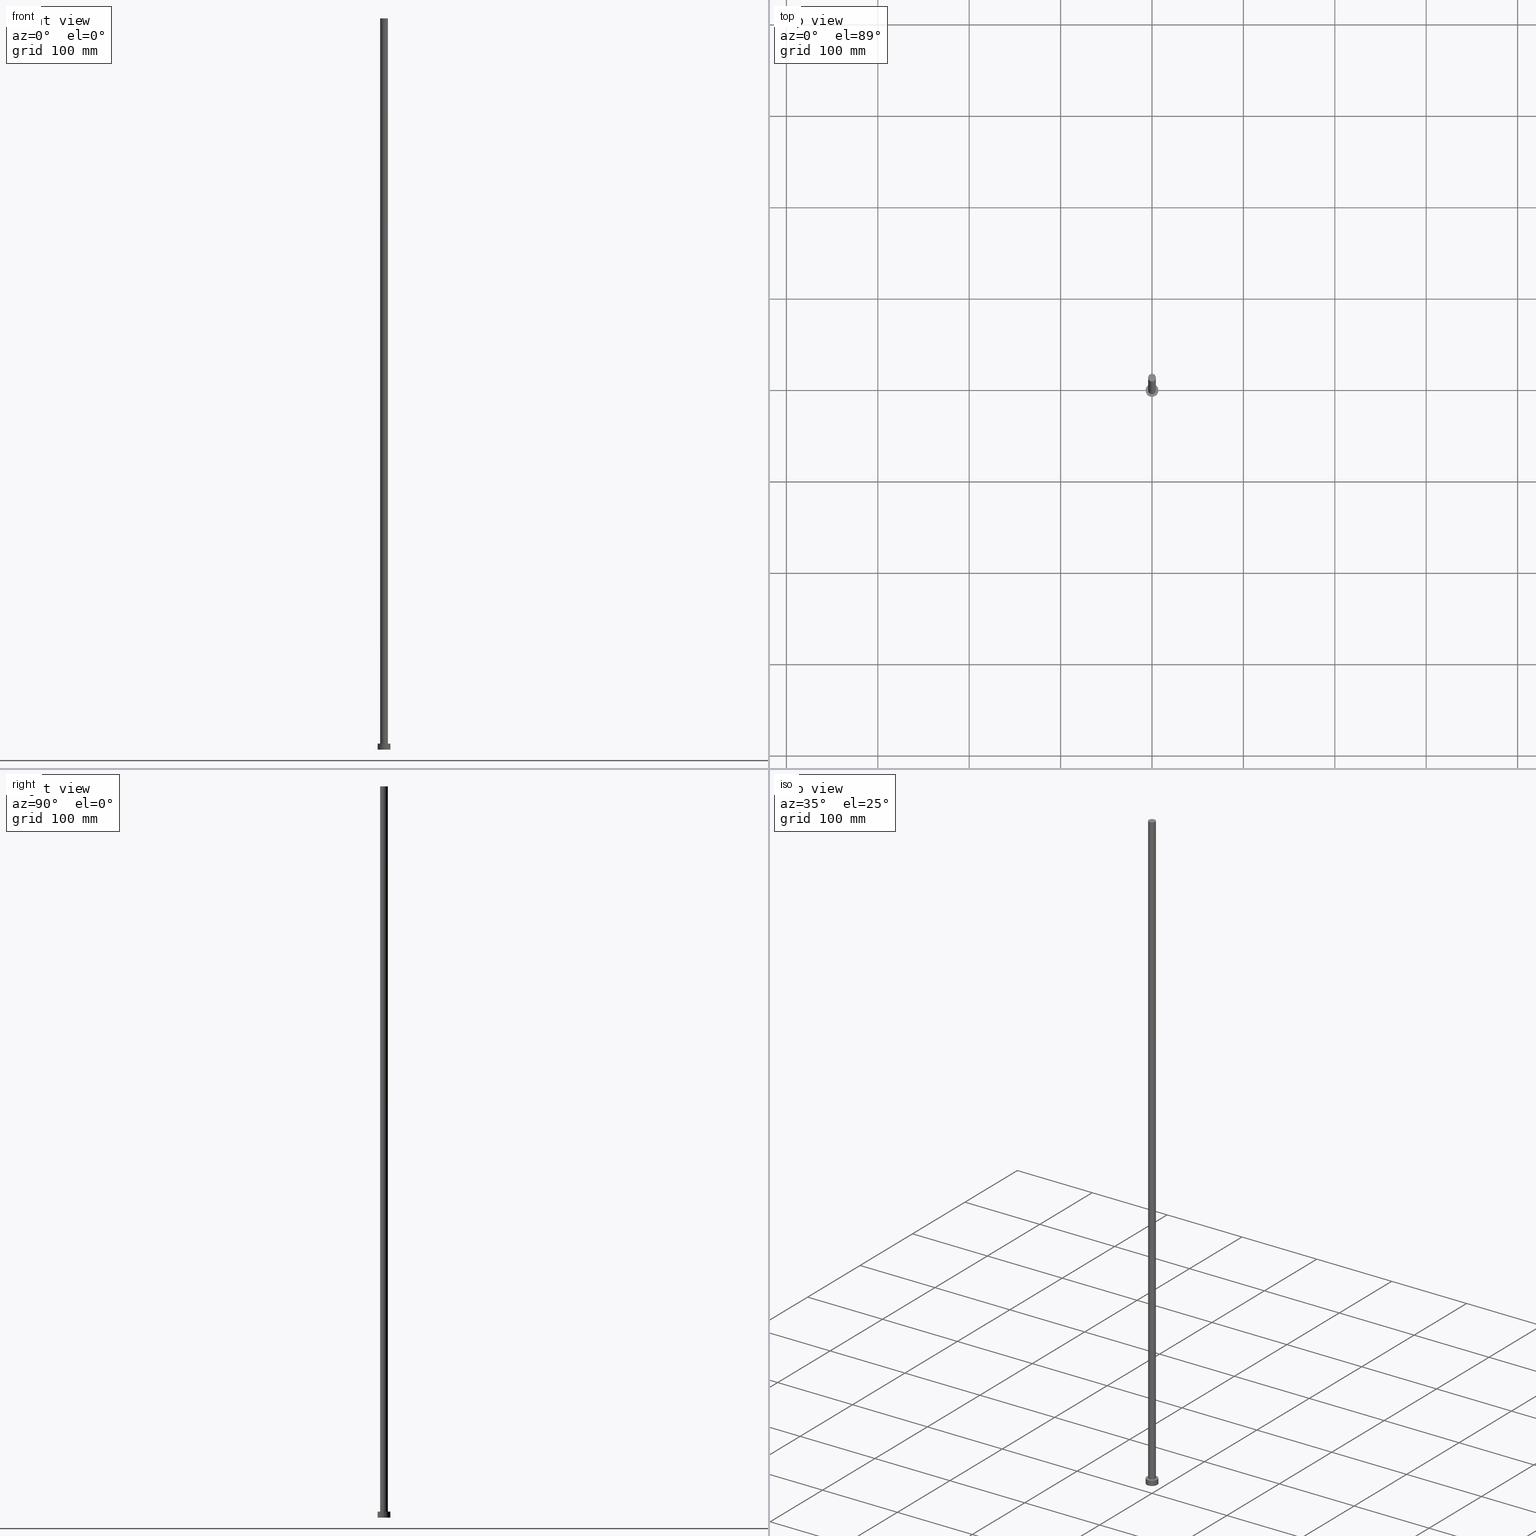
[diagram: canonical four-view strip — front | top / right | iso, engineering-drawing reading convention]
A machine part, canonical four-view strip (front | top / right | iso — engineering-drawing reading convention). The complete STEP part file that produces these views, byte-faithful:
ISO-10303-21;
HEADER;
FILE_DESCRIPTION (( 'STEP AP203' ),
    '1' );
FILE_NAME ('458e.STEP',
    '2023-02-13T13:47:08',
    ( '' ),
    ( '' ),
    'SwSTEP 2.0',
    'SolidWorks 2019',
    '' );
FILE_SCHEMA (( 'CONFIG_CONTROL_DESIGN' ));
ENDSEC;

DATA;
#1 = SECURITY_CLASSIFICATION_LEVEL ( 'unclassified' ) ;
#2 = CIRCLE ( 'NONE', #39, 4.250000000000000000 ) ;
#3 = CIRCLE ( 'NONE', #241, 7.000000000000000000 ) ;
#4 = ORIENTED_EDGE ( 'NONE', *, *, #214, .F. ) ;
#5 = ORIENTED_EDGE ( 'NONE', *, *, #170, .F. ) ;
#6 = EDGE_CURVE ( 'NONE', #141, #90, #162, .T. ) ;
#7 = APPROVAL_PERSON_ORGANIZATION ( #98, #100, #213 ) ;
#8 = ORIENTED_EDGE ( 'NONE', *, *, #190, .F. ) ;
#9 = DIRECTION ( 'NONE',  ( -0.000000000000000000, -0.000000000000000000, -1.000000000000000000 ) ) ;
#10 = CLOSED_SHELL ( 'NONE', ( #27, #242, #43, #61, #199, #122, #229 ) ) ;
#11 = FACE_OUTER_BOUND ( 'NONE', #169, .T. ) ;
#12 = CC_DESIGN_APPROVAL ( #102, ( #66 ) ) ;
#13 = FACE_OUTER_BOUND ( 'NONE', #183, .T. ) ;
#14 = CARTESIAN_POINT ( 'NONE',  ( -4.250000000000000000, 0.000000000000000000, 6.500000000000000000 ) ) ;
#15 = PERSON_AND_ORGANIZATION ( #30, #246 ) ;
#16 = CIRCLE ( 'NONE', #252, 4.250000000000000000 ) ;
#17 = CARTESIAN_POINT ( 'NONE',  ( 0.000000000000000000, 0.000000000000000000, 799.9999999999998863 ) ) ;
#18 = CALENDAR_DATE ( 2023, 13, 2 ) ;
#19 = EDGE_CURVE ( 'NONE', #238, #89, #16, .T. ) ;
#20 =( LENGTH_UNIT ( ) NAMED_UNIT ( * ) SI_UNIT ( .MILLI., .METRE. ) );
#21 = PERSON_AND_ORGANIZATION ( #30, #246 ) ;
#22 = VECTOR ( 'NONE', #46, 1000.000000000000000 ) ;
#23 = FACE_OUTER_BOUND ( 'NONE', #72, .T. ) ;
#24 = COORDINATED_UNIVERSAL_TIME_OFFSET ( 1, 0, .AHEAD. ) ;
#25 = EDGE_CURVE ( 'NONE', #160, #240, #95, .T. ) ;
#26 = PERSON_AND_ORGANIZATION ( #30, #246 ) ;
#27 = ADVANCED_FACE ( 'NONE', ( #224 ), #37, .T. ) ;
#28 = LOCAL_TIME ( 14, 47, 8.000000000000000000, #24 ) ;
#29 = ORIENTED_EDGE ( 'NONE', *, *, #6, .F. ) ;
#30 = PERSON ( 'NEUR�EN�', 'NEUR�EN�', 'NEUR�EN�', ('NEUR�EN�'), ('NEUR�EN�'), ('NEUR�EN�') ) ;
#31 = APPROVAL ( #57, 'NEUR�EN�' ) ;
#32 = ORIENTED_EDGE ( 'NONE', *, *, #218, .T. ) ;
#33 = LINE ( 'NONE', #186, #103 ) ;
#34 = CARTESIAN_POINT ( 'NONE',  ( 7.000000000000000000, 8.572527594031471218E-16, 6.500000000000000000 ) ) ;
#35 = AXIS2_PLACEMENT_3D ( 'NONE', #70, #178, #99 ) ;
#36 = PRODUCT_DEFINITION_SHAPE ( 'NONE', 'NONE',  #233 ) ;
#37 = CYLINDRICAL_SURFACE ( 'NONE', #54, 4.250000000000000000 ) ;
#38 = DIRECTION ( 'NONE',  ( 0.000000000000000000, 0.000000000000000000, 1.000000000000000000 ) ) ;
#39 = AXIS2_PLACEMENT_3D ( 'NONE', #205, #38, #191 ) ;
#40 = DATE_TIME_ROLE ( 'creation_date' ) ;
#41 = CC_DESIGN_APPROVAL ( #31, ( #113 ) ) ;
#42 = FACE_OUTER_BOUND ( 'NONE', #239, .T. ) ;
#43 = ADVANCED_FACE ( 'NONE', ( #146 ), #114, .T. ) ;
#44 = DIRECTION ( 'NONE',  ( 0.000000000000000000, 0.000000000000000000, 1.000000000000000000 ) ) ;
#45 = CYLINDRICAL_SURFACE ( 'NONE', #123, 7.000000000000000000 ) ;
#46 = DIRECTION ( 'NONE',  ( -0.000000000000000000, -0.000000000000000000, -1.000000000000000000 ) ) ;
#47 = APPROVAL_ROLE ( '' ) ;
#48 = APPLICATION_CONTEXT ( 'configuration controlled 3d designs of mechanical parts and assemblies' ) ;
#49 = APPROVAL_PERSON_ORGANIZATION ( #119, #102, #47 ) ;
#50 = ORIENTED_EDGE ( 'NONE', *, *, #214, .T. ) ;
#51 = ORIENTED_EDGE ( 'NONE', *, *, #25, .F. ) ;
#52 = EDGE_CURVE ( 'NONE', #89, #238, #2, .T. ) ;
#53 = EDGE_LOOP ( 'NONE', ( #29, #4 ) ) ;
#54 = AXIS2_PLACEMENT_3D ( 'NONE', #192, #76, #129 ) ;
#55 = DIRECTION ( 'NONE',  ( -1.000000000000000000, 0.000000000000000000, 0.000000000000000000 ) ) ;
#56 = DIRECTION ( 'NONE',  ( 1.000000000000000000, 0.000000000000000000, -0.000000000000000000 ) ) ;
#57 = APPROVAL_STATUS ( 'not_yet_approved' ) ;
#58 = DIRECTION ( 'NONE',  ( -0.000000000000000000, -0.000000000000000000, -1.000000000000000000 ) ) ;
#59 = CARTESIAN_POINT ( 'NONE',  ( -4.250000000000000000, 0.000000000000000000, 799.9999999999998863 ) ) ;
#60 = AXIS2_PLACEMENT_3D ( 'NONE', #136, #44, #255 ) ;
#61 = ADVANCED_FACE ( 'NONE', ( #79, #13 ), #151, .T. ) ;
#62 = DIRECTION ( 'NONE',  ( -0.000000000000000000, -0.000000000000000000, -1.000000000000000000 ) ) ;
#63 = CALENDAR_DATE ( 2023, 13, 2 ) ;
#64 = DIRECTION ( 'NONE',  ( 1.000000000000000000, 0.000000000000000000, 0.000000000000000000 ) ) ;
#65 = CARTESIAN_POINT ( 'NONE',  ( 4.250000000000000000, 5.204748896376250699E-16, 6.500000000000000000 ) ) ;
#66 = PRODUCT_DEFINITION_FORMATION_WITH_SPECIFIED_SOURCE ( 'LIBOVOLN�', '', #188, .NOT_KNOWN. ) ;
#67 = MECHANICAL_CONTEXT ( 'NONE', #48, 'mechanical' ) ;
#68 = UNCERTAINTY_MEASURE_WITH_UNIT (LENGTH_MEASURE( 1.000000000000000082E-05 ), #20, 'distance_accuracy_value', 'NONE');
#69 = PERSON_AND_ORGANIZATION_ROLE ( 'creator' ) ;
#70 = CARTESIAN_POINT ( 'NONE',  ( 0.000000000000000000, 0.000000000000000000, 0.000000000000000000 ) ) ;
#71 = PERSON_AND_ORGANIZATION_ROLE ( 'design_supplier' ) ;
#72 = EDGE_LOOP ( 'NONE', ( #198, #142 ) ) ;
#73 = ORIENTED_EDGE ( 'NONE', *, *, #6, .T. ) ;
#74 = AXIS2_PLACEMENT_3D ( 'NONE', #111, #172, #126 ) ;
#75 = PLANE ( 'NONE',  #35 ) ;
#76 = DIRECTION ( 'NONE',  ( -0.000000000000000000, -0.000000000000000000, -1.000000000000000000 ) ) ;
#77 = DIRECTION ( 'NONE',  ( 1.000000000000000000, 0.000000000000000000, 0.000000000000000000 ) ) ;
#78 = CC_DESIGN_PERSON_AND_ORGANIZATION_ASSIGNMENT ( #21, #253, ( #188 ) ) ;
#79 = FACE_BOUND ( 'NONE', #201, .T. ) ;
#80 = DIRECTION ( 'NONE',  ( -0.000000000000000000, -0.000000000000000000, -1.000000000000000000 ) ) ;
#81 = AXIS2_PLACEMENT_3D ( 'NONE', #167, #128, #207 ) ;
#82 = DIRECTION ( 'NONE',  ( 0.000000000000000000, 0.000000000000000000, 1.000000000000000000 ) ) ;
#83 = DATE_AND_TIME ( #254, #166 ) ;
#84 = EDGE_CURVE ( 'NONE', #163, #108, #179, .T. ) ;
#85 = CALENDAR_DATE ( 2023, 13, 2 ) ;
#86 = EDGE_CURVE ( 'NONE', #108, #90, #33, .T. ) ;
#87 = EDGE_LOOP ( 'NONE', ( #164, #88, #182, #161 ) ) ;
#88 = ORIENTED_EDGE ( 'NONE', *, *, #170, .T. ) ;
#89 = VERTEX_POINT ( 'NONE', #14 ) ;
#90 = VERTEX_POINT ( 'NONE', #211 ) ;
#91 = ORIENTED_EDGE ( 'NONE', *, *, #84, .F. ) ;
#92 = DIRECTION ( 'NONE',  ( -0.000000000000000000, -0.000000000000000000, -1.000000000000000000 ) ) ;
#93 = DIRECTION ( 'NONE',  ( 1.000000000000000000, 0.000000000000000000, 0.000000000000000000 ) ) ;
#94 = PERSON_AND_ORGANIZATION_ROLE ( 'classification_officer' ) ;
#95 = CIRCLE ( 'NONE', #235, 4.250000000000000000 ) ;
#96 = CARTESIAN_POINT ( 'NONE',  ( -7.000000000000000000, 0.000000000000000000, 6.500000000000000000 ) ) ;
#97 = DIRECTION ( 'NONE',  ( -0.000000000000000000, -0.000000000000000000, -1.000000000000000000 ) ) ;
#98 = PERSON_AND_ORGANIZATION ( #30, #246 ) ;
#99 = DIRECTION ( 'NONE',  ( 1.000000000000000000, 0.000000000000000000, -0.000000000000000000 ) ) ;
#100 = APPROVAL ( #133, 'NEUR�EN�' ) ;
#101 = CALENDAR_DATE ( 2023, 13, 2 ) ;
#102 = APPROVAL ( #159, 'NEUR�EN�' ) ;
#103 = VECTOR ( 'NONE', #62, 1000.000000000000000 ) ;
#104 = AXIS2_PLACEMENT_3D ( 'NONE', #227, #209, #56 ) ;
#105 = PERSON_AND_ORGANIZATION_ROLE ( 'creator' ) ;
#106 = ORIENTED_EDGE ( 'NONE', *, *, #244, .F. ) ;
#107 = AXIS2_PLACEMENT_3D ( 'NONE', #193, #154, #175 ) ;
#108 = VERTEX_POINT ( 'NONE', #34 ) ;
#109 = ORIENTED_EDGE ( 'NONE', *, *, #86, .T. ) ;
#110 = LOCAL_TIME ( 14, 47, 8.000000000000000000, #204 ) ;
#111 = CARTESIAN_POINT ( 'NONE',  ( 0.000000000000000000, 0.000000000000000000, 6.500000000000000000 ) ) ;
#112 = CYLINDRICAL_SURFACE ( 'NONE', #217, 4.250000000000000000 ) ;
#113 = SECURITY_CLASSIFICATION ( '', '', #1 ) ;
#114 = CYLINDRICAL_SURFACE ( 'NONE', #143, 7.000000000000000000 ) ;
#115 = CARTESIAN_POINT ( 'NONE',  ( 0.000000000000000000, 0.000000000000000000, 799.9999999999998863 ) ) ;
#116 = CARTESIAN_POINT ( 'NONE',  ( 4.250000000000000000, 5.204748896376250699E-16, 799.9999999999998863 ) ) ;
#117 = APPLICATION_CONTEXT ( 'configuration controlled 3d designs of mechanical parts and assemblies' ) ;
#118 = APPLICATION_PROTOCOL_DEFINITION ( 'international standard', 'config_control_design', 1994, #117 ) ;
#119 = PERSON_AND_ORGANIZATION ( #30, #246 ) ;
#120 = LOCAL_TIME ( 14, 47, 8.000000000000000000, #215 ) ;
#121 = ORIENTED_EDGE ( 'NONE', *, *, #52, .F. ) ;
#122 = ADVANCED_FACE ( 'NONE', ( #11 ), #112, .T. ) ;
#123 = AXIS2_PLACEMENT_3D ( 'NONE', #138, #97, #194 ) ;
#124 = APPROVAL_PERSON_ORGANIZATION ( #225, #31, #145 ) ;
#125 = DIRECTION ( 'NONE',  ( 1.000000000000000000, 0.000000000000000000, 0.000000000000000000 ) ) ;
#126 = DIRECTION ( 'NONE',  ( 1.000000000000000000, 0.000000000000000000, 0.000000000000000000 ) ) ;
#127 = MANIFOLD_SOLID_BREP ( 'P�idat vysunut�m3', #10 ) ;
#128 = DIRECTION ( 'NONE',  ( 0.000000000000000000, 0.000000000000000000, 1.000000000000000000 ) ) ;
#129 = DIRECTION ( 'NONE',  ( -1.000000000000000000, 0.000000000000000000, 0.000000000000000000 ) ) ;
#130 = DATE_AND_TIME ( #18, #110 ) ;
#131 = DIRECTION ( 'NONE',  ( 0.000000000000000000, 0.000000000000000000, 1.000000000000000000 ) ) ;
#132 = CARTESIAN_POINT ( 'NONE',  ( -7.000000000000000000, 0.000000000000000000, 6.500000000000000000 ) ) ;
#133 = APPROVAL_STATUS ( 'not_yet_approved' ) ;
#134 = CC_DESIGN_APPROVAL ( #100, ( #233 ) ) ;
#135 = CC_DESIGN_PERSON_AND_ORGANIZATION_ASSIGNMENT ( #26, #105, ( #66 ) ) ;
#136 = CARTESIAN_POINT ( 'NONE',  ( 0.000000000000000000, 0.000000000000000000, 799.9999999999998863 ) ) ;
#137 = LINE ( 'NONE', #132, #181 ) ;
#138 = CARTESIAN_POINT ( 'NONE',  ( 0.000000000000000000, 0.000000000000000000, 6.500000000000000000 ) ) ;
#139 = DATE_AND_TIME ( #85, #120 ) ;
#140 = ORIENTED_EDGE ( 'NONE', *, *, #19, .F. ) ;
#141 = VERTEX_POINT ( 'NONE', #248 ) ;
#142 = ORIENTED_EDGE ( 'NONE', *, *, #152, .T. ) ;
#143 = AXIS2_PLACEMENT_3D ( 'NONE', #223, #58, #55 ) ;
#144 = CARTESIAN_POINT ( 'NONE',  ( 0.000000000000000000, 0.000000000000000000, 6.500000000000000000 ) ) ;
#145 = APPROVAL_ROLE ( '' ) ;
#146 = FACE_OUTER_BOUND ( 'NONE', #221, .T. ) ;
#147 = DIRECTION ( 'NONE',  ( 0.000000000000000000, 0.000000000000000000, 1.000000000000000000 ) ) ;
#148 = LINE ( 'NONE', #251, #208 ) ;
#149 = COORDINATED_UNIVERSAL_TIME_OFFSET ( 1, 0, .AHEAD. ) ;
#150 = CC_DESIGN_DATE_AND_TIME_ASSIGNMENT ( #212, #40, ( #233 ) ) ;
#151 = PLANE ( 'NONE',  #104 ) ;
#152 = EDGE_CURVE ( 'NONE', #240, #160, #165, .T. ) ;
#153 =( NAMED_UNIT ( * ) PLANE_ANGLE_UNIT ( ) SI_UNIT ( $, .RADIAN. ) );
#154 = DIRECTION ( 'NONE',  ( 0.000000000000000000, 0.000000000000000000, 1.000000000000000000 ) ) ;
#155 = APPLICATION_PROTOCOL_DEFINITION ( 'international standard', 'config_control_design', 1994, #48 ) ;
#156 =( GEOMETRIC_REPRESENTATION_CONTEXT ( 3 ) GLOBAL_UNCERTAINTY_ASSIGNED_CONTEXT ( ( #68 ) ) GLOBAL_UNIT_ASSIGNED_CONTEXT ( ( #20, #153, #228 ) ) REPRESENTATION_CONTEXT ( 'NONE', 'WORKASPACE' ) );
#157 = APPROVAL_DATE_TIME ( #83, #100 ) ;
#158 = CC_DESIGN_PERSON_AND_ORGANIZATION_ASSIGNMENT ( #236, #71, ( #66 ) ) ;
#159 = APPROVAL_STATUS ( 'not_yet_approved' ) ;
#160 = VERTEX_POINT ( 'NONE', #59 ) ;
#161 = ORIENTED_EDGE ( 'NONE', *, *, #218, .F. ) ;
#162 = CIRCLE ( 'NONE', #81, 7.000000000000000000 ) ;
#163 = VERTEX_POINT ( 'NONE', #96 ) ;
#164 = ORIENTED_EDGE ( 'NONE', *, *, #152, .F. ) ;
#165 = CIRCLE ( 'NONE', #231, 4.250000000000000000 ) ;
#166 = LOCAL_TIME ( 14, 47, 8.000000000000000000, #176 ) ;
#167 = CARTESIAN_POINT ( 'NONE',  ( 0.000000000000000000, 0.000000000000000000, 0.000000000000000000 ) ) ;
#168 = DIRECTION ( 'NONE',  ( -1.000000000000000000, 0.000000000000000000, 0.000000000000000000 ) ) ;
#169 = EDGE_LOOP ( 'NONE', ( #5, #51, #32, #200 ) ) ;
#170 = EDGE_CURVE ( 'NONE', #240, #238, #148, .T. ) ;
#171 = APPROVAL_DATE_TIME ( #206, #31 ) ;
#172 = DIRECTION ( 'NONE',  ( 0.000000000000000000, 0.000000000000000000, 1.000000000000000000 ) ) ;
#173 = LOCAL_TIME ( 14, 47, 8.000000000000000000, #149 ) ;
#174 = CARTESIAN_POINT ( 'NONE',  ( -4.250000000000000000, 0.000000000000000000, 799.9999999999998863 ) ) ;
#175 = DIRECTION ( 'NONE',  ( 1.000000000000000000, 0.000000000000000000, 0.000000000000000000 ) ) ;
#176 = COORDINATED_UNIVERSAL_TIME_OFFSET ( 1, 0, .AHEAD. ) ;
#177 = CARTESIAN_POINT ( 'NONE',  ( 0.000000000000000000, 0.000000000000000000, 0.000000000000000000 ) ) ;
#178 = DIRECTION ( 'NONE',  ( 0.000000000000000000, 0.000000000000000000, 1.000000000000000000 ) ) ;
#179 = CIRCLE ( 'NONE', #74, 7.000000000000000000 ) ;
#180 = ORIENTED_EDGE ( 'NONE', *, *, #190, .T. ) ;
#181 = VECTOR ( 'NONE', #80, 1000.000000000000000 ) ;
#182 = ORIENTED_EDGE ( 'NONE', *, *, #19, .T. ) ;
#183 = EDGE_LOOP ( 'NONE', ( #243, #180 ) ) ;
#184 = DESIGN_CONTEXT ( 'detailed design', #117, 'design' ) ;
#185 = ORIENTED_EDGE ( 'NONE', *, *, #244, .T. ) ;
#186 = CARTESIAN_POINT ( 'NONE',  ( 7.000000000000000000, 8.572527594031471218E-16, 6.500000000000000000 ) ) ;
#187 = AXIS2_PLACEMENT_3D ( 'NONE', #144, #220, #245 ) ;
#188 = PRODUCT ( '458e', '458e', '', ( #67 ) ) ;
#189 = CARTESIAN_POINT ( 'NONE',  ( 0.000000000000000000, 0.000000000000000000, 799.9999999999998863 ) ) ;
#190 = EDGE_CURVE ( 'NONE', #108, #163, #237, .T. ) ;
#191 = DIRECTION ( 'NONE',  ( 1.000000000000000000, 0.000000000000000000, 0.000000000000000000 ) ) ;
#192 = CARTESIAN_POINT ( 'NONE',  ( 0.000000000000000000, 0.000000000000000000, 799.9999999999998863 ) ) ;
#193 = CARTESIAN_POINT ( 'NONE',  ( 0.000000000000000000, 0.000000000000000000, 0.000000000000000000 ) ) ;
#194 = DIRECTION ( 'NONE',  ( -1.000000000000000000, 0.000000000000000000, 0.000000000000000000 ) ) ;
#195 = CC_DESIGN_PERSON_AND_ORGANIZATION_ASSIGNMENT ( #232, #69, ( #233 ) ) ;
#196 = PLANE ( 'NONE',  #60 ) ;
#197 = APPROVAL_DATE_TIME ( #139, #102 ) ;
#198 = ORIENTED_EDGE ( 'NONE', *, *, #25, .T. ) ;
#199 = ADVANCED_FACE ( 'NONE', ( #203 ), #75, .F. ) ;
#200 = ORIENTED_EDGE ( 'NONE', *, *, #52, .T. ) ;
#201 = EDGE_LOOP ( 'NONE', ( #121, #140 ) ) ;
#202 = CC_DESIGN_PERSON_AND_ORGANIZATION_ASSIGNMENT ( #15, #94, ( #113 ) ) ;
#203 = FACE_OUTER_BOUND ( 'NONE', #53, .T. ) ;
#204 = COORDINATED_UNIVERSAL_TIME_OFFSET ( 1, 0, .AHEAD. ) ;
#205 = CARTESIAN_POINT ( 'NONE',  ( 0.000000000000000000, 0.000000000000000000, 6.500000000000000000 ) ) ;
#206 = DATE_AND_TIME ( #63, #173 ) ;
#207 = DIRECTION ( 'NONE',  ( 1.000000000000000000, 0.000000000000000000, 0.000000000000000000 ) ) ;
#208 = VECTOR ( 'NONE', #9, 1000.000000000000000 ) ;
#209 = DIRECTION ( 'NONE',  ( 0.000000000000000000, 0.000000000000000000, 1.000000000000000000 ) ) ;
#210 = SHAPE_DEFINITION_REPRESENTATION ( #36, #230 ) ;
#211 = CARTESIAN_POINT ( 'NONE',  ( 7.000000000000000000, 8.572527594031471218E-16, 0.000000000000000000 ) ) ;
#212 = DATE_AND_TIME ( #101, #28 ) ;
#213 = APPROVAL_ROLE ( '' ) ;
#214 = EDGE_CURVE ( 'NONE', #90, #141, #3, .T. ) ;
#215 = COORDINATED_UNIVERSAL_TIME_OFFSET ( 1, 0, .AHEAD. ) ;
#216 = PRODUCT_RELATED_PRODUCT_CATEGORY ( 'detail', '', ( #188 ) ) ;
#217 = AXIS2_PLACEMENT_3D ( 'NONE', #189, #92, #168 ) ;
#218 = EDGE_CURVE ( 'NONE', #160, #89, #234, .T. ) ;
#219 = ORIENTED_EDGE ( 'NONE', *, *, #86, .F. ) ;
#220 = DIRECTION ( 'NONE',  ( 0.000000000000000000, 0.000000000000000000, 1.000000000000000000 ) ) ;
#221 = EDGE_LOOP ( 'NONE', ( #219, #91, #185, #73 ) ) ;
#222 = DATE_TIME_ROLE ( 'classification_date' ) ;
#223 = CARTESIAN_POINT ( 'NONE',  ( 0.000000000000000000, 0.000000000000000000, 6.500000000000000000 ) ) ;
#224 = FACE_OUTER_BOUND ( 'NONE', #87, .T. ) ;
#225 = PERSON_AND_ORGANIZATION ( #30, #246 ) ;
#226 = CC_DESIGN_SECURITY_CLASSIFICATION ( #113, ( #66 ) ) ;
#227 = CARTESIAN_POINT ( 'NONE',  ( 0.000000000000000000, 0.000000000000000000, 6.500000000000000000 ) ) ;
#228 =( NAMED_UNIT ( * ) SI_UNIT ( $, .STERADIAN. ) SOLID_ANGLE_UNIT ( ) );
#229 = ADVANCED_FACE ( 'NONE', ( #23 ), #196, .T. ) ;
#230 = ADVANCED_BREP_SHAPE_REPRESENTATION ( '458e', ( #127, #107 ), #156 ) ;
#231 = AXIS2_PLACEMENT_3D ( 'NONE', #17, #131, #77 ) ;
#232 = PERSON_AND_ORGANIZATION ( #30, #246 ) ;
#233 = PRODUCT_DEFINITION ( 'NEZN�M�', '', #66, #184 ) ;
#234 = LINE ( 'NONE', #174, #22 ) ;
#235 = AXIS2_PLACEMENT_3D ( 'NONE', #115, #247, #93 ) ;
#236 = PERSON_AND_ORGANIZATION ( #30, #246 ) ;
#237 = CIRCLE ( 'NONE', #187, 7.000000000000000000 ) ;
#238 = VERTEX_POINT ( 'NONE', #65 ) ;
#239 = EDGE_LOOP ( 'NONE', ( #8, #109, #50, #106 ) ) ;
#240 = VERTEX_POINT ( 'NONE', #116 ) ;
#241 = AXIS2_PLACEMENT_3D ( 'NONE', #177, #82, #64 ) ;
#242 = ADVANCED_FACE ( 'NONE', ( #42 ), #45, .T. ) ;
#243 = ORIENTED_EDGE ( 'NONE', *, *, #84, .T. ) ;
#244 = EDGE_CURVE ( 'NONE', #163, #141, #137, .T. ) ;
#245 = DIRECTION ( 'NONE',  ( 1.000000000000000000, 0.000000000000000000, 0.000000000000000000 ) ) ;
#246 = ORGANIZATION ( 'NEUR�EN�', 'NEUR�EN�', '' ) ;
#247 = DIRECTION ( 'NONE',  ( 0.000000000000000000, 0.000000000000000000, 1.000000000000000000 ) ) ;
#248 = CARTESIAN_POINT ( 'NONE',  ( -7.000000000000000000, 0.000000000000000000, 0.000000000000000000 ) ) ;
#249 = CARTESIAN_POINT ( 'NONE',  ( 0.000000000000000000, 0.000000000000000000, 6.500000000000000000 ) ) ;
#250 = CC_DESIGN_DATE_AND_TIME_ASSIGNMENT ( #130, #222, ( #113 ) ) ;
#251 = CARTESIAN_POINT ( 'NONE',  ( 4.250000000000000000, 5.204748896376250699E-16, 799.9999999999998863 ) ) ;
#252 = AXIS2_PLACEMENT_3D ( 'NONE', #249, #147, #125 ) ;
#253 = PERSON_AND_ORGANIZATION_ROLE ( 'design_owner' ) ;
#254 = CALENDAR_DATE ( 2023, 13, 2 ) ;
#255 = DIRECTION ( 'NONE',  ( 1.000000000000000000, 0.000000000000000000, -0.000000000000000000 ) ) ;
ENDSEC;
END-ISO-10303-21;
